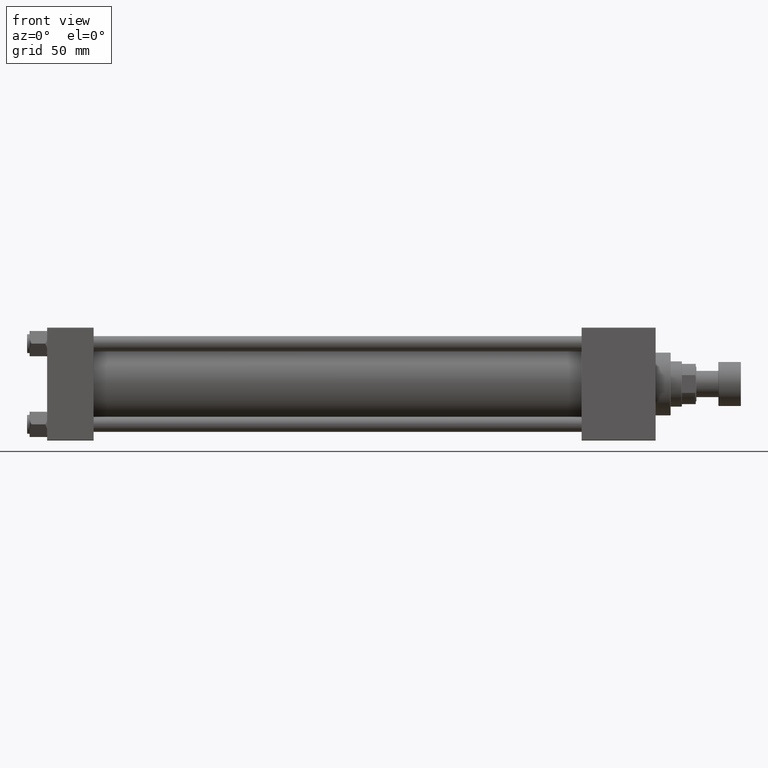
[diagram: clean part render]
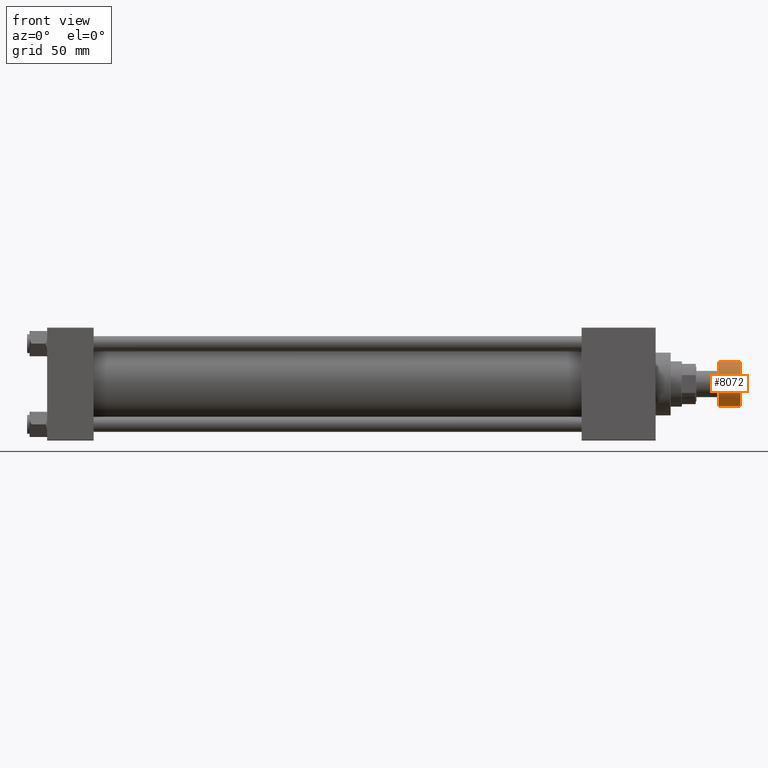
[diagram: same view with one face highlighted and labeled with its STEP entity id]
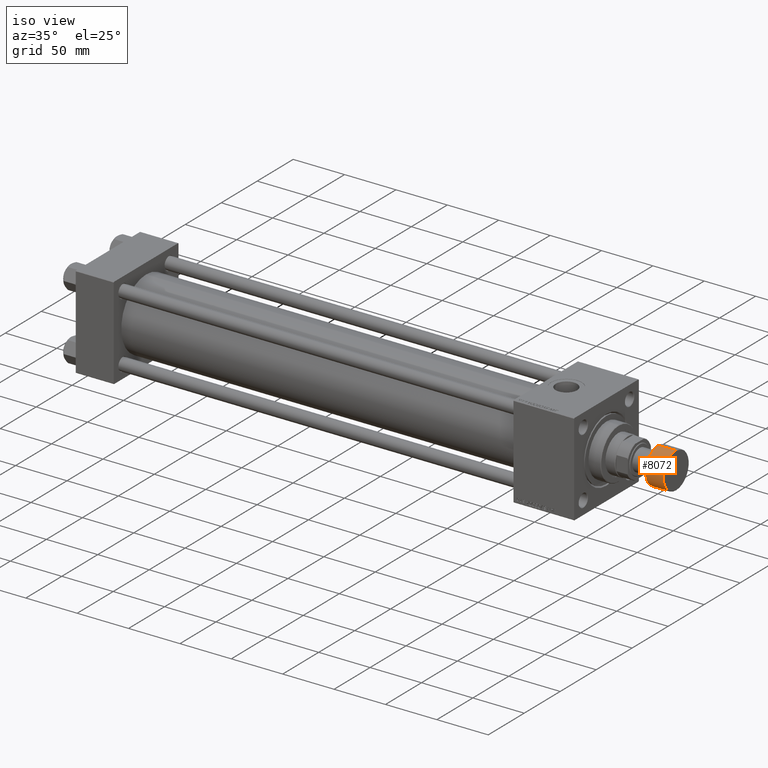
[diagram: same view with one face highlighted and labeled with its STEP entity id]
A machine part, front view. The second image highlights one B-rep face of the part: STEP entity #8072.
A second angle (iso view) of the same face is appended — the face is thin or edge-on in the first view.
In plain terms, the highlighted cylindrical surface (edge-blend (fillet) strip) has radius 17.5 mm, axis along (1, 0, -0).
Its self-contained STEP definition (entity closure, byte-faithful):
#1429 = DIRECTION ( 'NONE',  ( 1.000000000000000000, 0.000000000000000000, 0.000000000000000000 ) ) ;
#2555 = CARTESIAN_POINT ( 'NONE',  ( -17.50000000000000355, 2.143131898507868643E-15, -17.49999999999999645 ) ) ;
#3525 = ORIENTED_EDGE ( 'NONE', *, *, #39914, .F. ) ;
#3656 = EDGE_CURVE ( 'NONE', #14346, #47287, #15757, .T. ) ;
#4863 = DIRECTION ( 'NONE',  ( 0.000000000000000000, 0.000000000000000000, 1.000000000000000000 ) ) ;
#5276 = CARTESIAN_POINT ( 'NONE',  ( 0.000000000000000000, 0.000000000000000000, -0.5000000000000004441 ) ) ;
#6500 = CIRCLE ( 'NONE', #44123, 17.50000000000000355 ) ;
#8072 = ADVANCED_FACE ( 'NONE', ( #18606 ), #41920, .T. ) ;
#8087 = EDGE_LOOP ( 'NONE', ( #3525, #8172, #16103, #9626 ) ) ;
#8172 = ORIENTED_EDGE ( 'NONE', *, *, #49367, .T. ) ;
#9532 = DIRECTION ( 'NONE',  ( 1.000000000000000000, 0.000000000000000000, 0.000000000000000000 ) ) ;
#9626 = ORIENTED_EDGE ( 'NONE', *, *, #3656, .T. ) ;
#10051 = AXIS2_PLACEMENT_3D ( 'NONE', #10917, #33982, #41670 ) ;
#10173 = CARTESIAN_POINT ( 'NONE',  ( 17.50000000000000355, 0.000000000000000000, -0.5000000000000004441 ) ) ;
#10917 = CARTESIAN_POINT ( 'NONE',  ( 0.000000000000000000, 0.000000000000000000, -18.00000000000000000 ) ) ;
#12478 = LINE ( 'NONE', #39625, #40442 ) ;
#14114 = VERTEX_POINT ( 'NONE', #2555 ) ;
#14346 = VERTEX_POINT ( 'NONE', #10173 ) ;
#15757 = CIRCLE ( 'NONE', #40281, 17.50000000000000355 ) ;
#16103 = ORIENTED_EDGE ( 'NONE', *, *, #26376, .T. ) ;
#17209 = DIRECTION ( 'NONE',  ( 0.000000000000000000, 0.000000000000000000, 1.000000000000000000 ) ) ;
#18606 = FACE_OUTER_BOUND ( 'NONE', #8087, .T. ) ;
#20895 = DIRECTION ( 'NONE',  ( -0.000000000000000000, -0.000000000000000000, -1.000000000000000000 ) ) ;
#26376 = EDGE_CURVE ( 'NONE', #28999, #14346, #12478, .T. ) ;
#28148 = LINE ( 'NONE', #36100, #30954 ) ;
#28999 = VERTEX_POINT ( 'NONE', #41574 ) ;
#30954 = VECTOR ( 'NONE', #4863, 1000.000000000000000 ) ;
#31440 = DIRECTION ( 'NONE',  ( 0.000000000000000000, 0.000000000000000000, 1.000000000000000000 ) ) ;
#31764 = CARTESIAN_POINT ( 'NONE',  ( -17.50000000000000355, 2.143131898507868643E-15, -0.5000000000000004441 ) ) ;
#33982 = DIRECTION ( 'NONE',  ( 0.000000000000000000, 0.000000000000000000, 1.000000000000000000 ) ) ;
#36100 = CARTESIAN_POINT ( 'NONE',  ( -17.50000000000000355, 2.143131898507868643E-15, -18.00000000000000000 ) ) ;
#39625 = CARTESIAN_POINT ( 'NONE',  ( 17.50000000000000355, 0.000000000000000000, -18.00000000000000000 ) ) ;
#39914 = EDGE_CURVE ( 'NONE', #14114, #47287, #28148, .T. ) ;
#40281 = AXIS2_PLACEMENT_3D ( 'NONE', #5276, #20895, #1429 ) ;
#40442 = VECTOR ( 'NONE', #31440, 1000.000000000000000 ) ;
#40512 = CARTESIAN_POINT ( 'NONE',  ( 0.000000000000000000, 0.000000000000000000, -17.49999999999999645 ) ) ;
#41574 = CARTESIAN_POINT ( 'NONE',  ( 17.50000000000000355, 0.000000000000000000, -17.49999999999999645 ) ) ;
#41670 = DIRECTION ( 'NONE',  ( 1.000000000000000000, 0.000000000000000000, 0.000000000000000000 ) ) ;
#41920 = CYLINDRICAL_SURFACE ( 'NONE', #10051, 17.50000000000000355 ) ;
#44123 = AXIS2_PLACEMENT_3D ( 'NONE', #40512, #17209, #9532 ) ;
#47287 = VERTEX_POINT ( 'NONE', #31764 ) ;
#49367 = EDGE_CURVE ( 'NONE', #14114, #28999, #6500, .T. ) ;